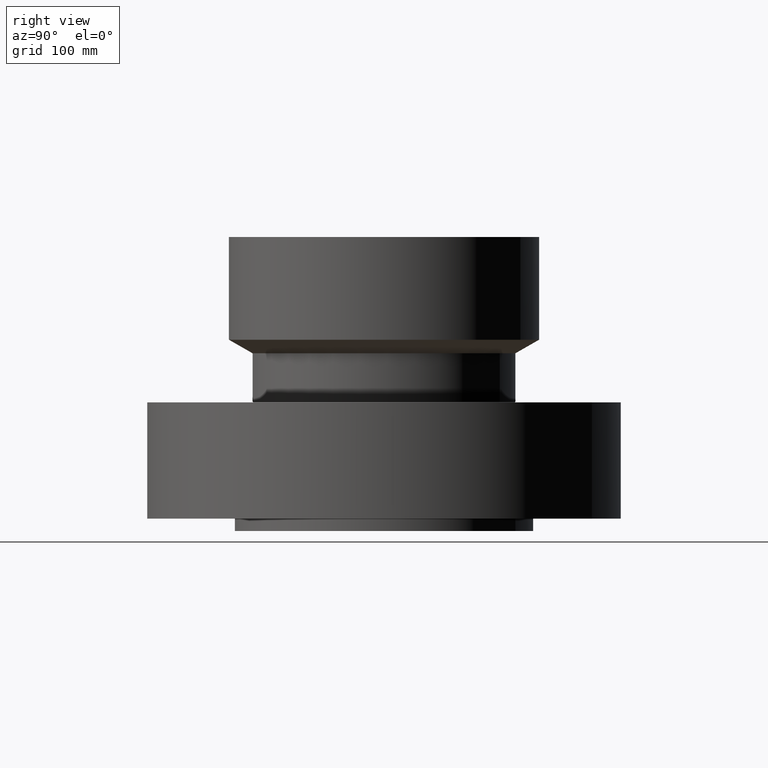
[diagram: clean part render]
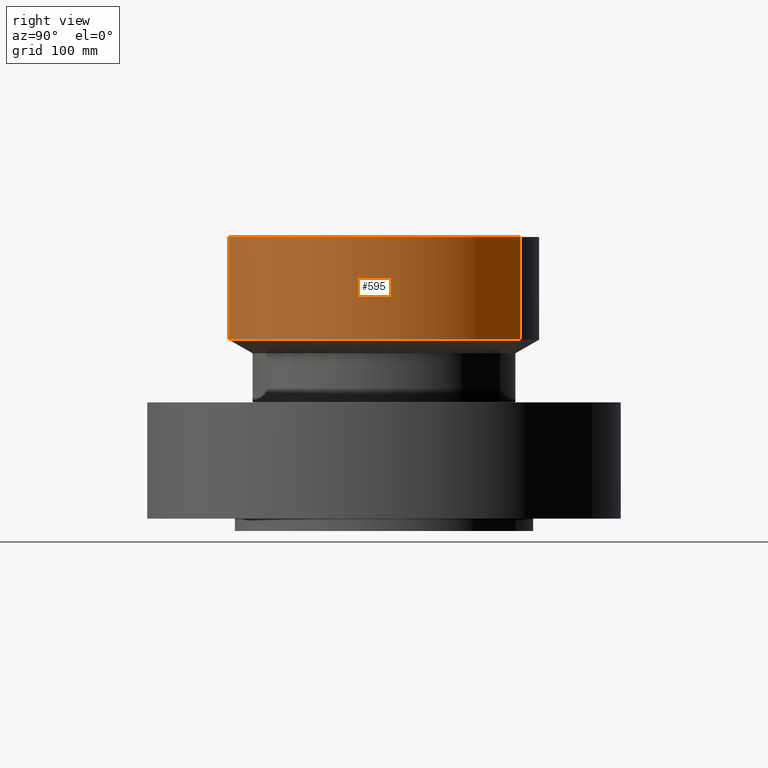
[diagram: same view with one face highlighted and labeled with its STEP entity id]
A machine part, right view. The second image highlights one B-rep face of the part: STEP entity #595.
In plain terms, the highlighted cylindrical surface (partial cylindrical patch) has radius 220.726 mm, axis along (0, 0, -1).
Its self-contained STEP definition (entity closure, byte-faithful):
#536=AXIS2_PLACEMENT_3D('Circle Axis2P3D',#534,#535,$) ;
#568=AXIS2_PLACEMENT_3D('Cylinder Axis2P3D',#565,#566,#567) ;
#579=AXIS2_PLACEMENT_3D('Circle Axis2P3D',#577,#578,$) ;
#531=CARTESIAN_POINT('Vertex',(4.16620793049,7.62619246286,10.009215604)) ;
#534=CARTESIAN_POINT('Axis2P3D Location',(0.,0.,10.009215604)) ;
#538=CARTESIAN_POINT('Vertex',(-4.16620793049,-7.62619246286,10.009215604)) ;
#565=CARTESIAN_POINT('Axis2P3D Location',(0.,0.,7.53100000003)) ;
#570=CARTESIAN_POINT('Line Origine',(4.16620793049,7.62619246286,12.879607802)) ;
#574=CARTESIAN_POINT('Vertex',(4.16620793049,7.62619246286,15.7500000001)) ;
#577=CARTESIAN_POINT('Axis2P3D Location',(0.,0.,15.7500000001)) ;
#581=CARTESIAN_POINT('Vertex',(-4.16620793049,-7.62619246286,15.7500000001)) ;
#584=CARTESIAN_POINT('Line Origine',(-4.16620793049,-7.62619246286,12.879607802)) ;
#535=DIRECTION('Axis2P3D Direction',(-0.,0.,0.0393700787402)) ;
#566=DIRECTION('Axis2P3D Direction',(0.,0.,-0.0393700787402)) ;
#567=DIRECTION('Axis2P3D XDirection',(-0.0188750212049,-0.0345504945626,0.)) ;
#571=DIRECTION('Vector Direction',(0.,0.,-0.0393700787402)) ;
#578=DIRECTION('Axis2P3D Direction',(0.,0.,-0.0393700787402)) ;
#585=DIRECTION('Vector Direction',(0.,0.,-0.0393700787402)) ;
#572=VECTOR('Line Direction',#571,0.0393700787402) ;
#586=VECTOR('Line Direction',#585,0.0393700787402) ;
#590=ORIENTED_EDGE('',*,*,#540,.F.) ;
#591=ORIENTED_EDGE('',*,*,#576,.T.) ;
#592=ORIENTED_EDGE('',*,*,#583,.T.) ;
#593=ORIENTED_EDGE('',*,*,#588,.F.) ;
#595=ADVANCED_FACE('PartBody',(#594),#569,.T.) ;
#537=CIRCLE('generated circle',#536,8.69000000003) ;
#580=CIRCLE('generated circle',#579,8.69000000003) ;
#569=CYLINDRICAL_SURFACE('generated cylinder',#568,8.69000000003) ;
#540=EDGE_CURVE('',#532,#539,#537,.F.) ;
#576=EDGE_CURVE('',#532,#575,#573,.F.) ;
#583=EDGE_CURVE('',#575,#582,#580,.T.) ;
#588=EDGE_CURVE('',#539,#582,#587,.F.) ;
#589=EDGE_LOOP('',(#590,#591,#592,#593)) ;
#594=FACE_OUTER_BOUND('',#589,.T.) ;
#573=LINE('Line',#570,#572) ;
#587=LINE('Line',#584,#586) ;
#532=VERTEX_POINT('',#531) ;
#539=VERTEX_POINT('',#538) ;
#575=VERTEX_POINT('',#574) ;
#582=VERTEX_POINT('',#581) ;